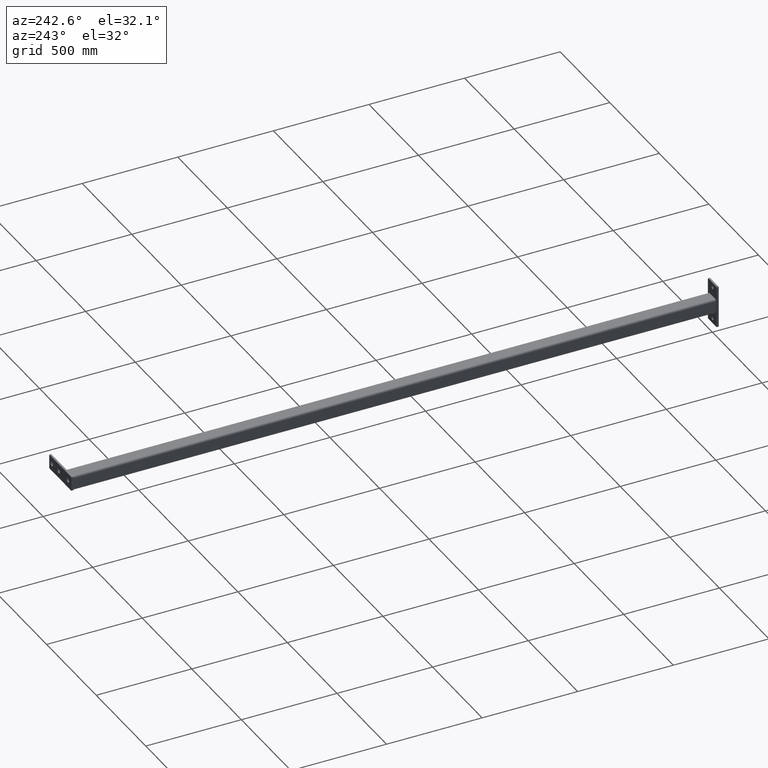
[diagram: clean part render]
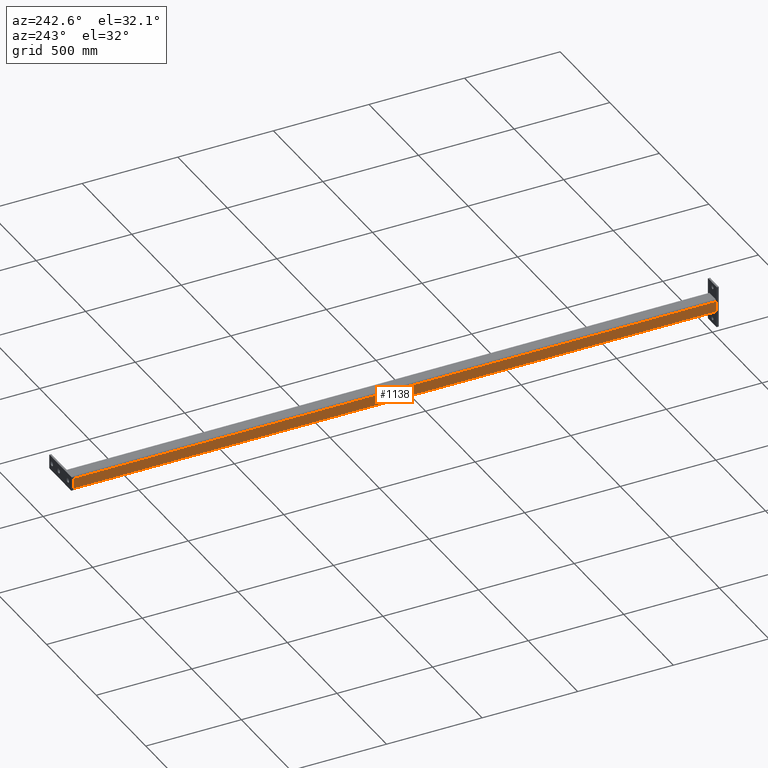
[diagram: same view with one face highlighted and labeled with its STEP entity id]
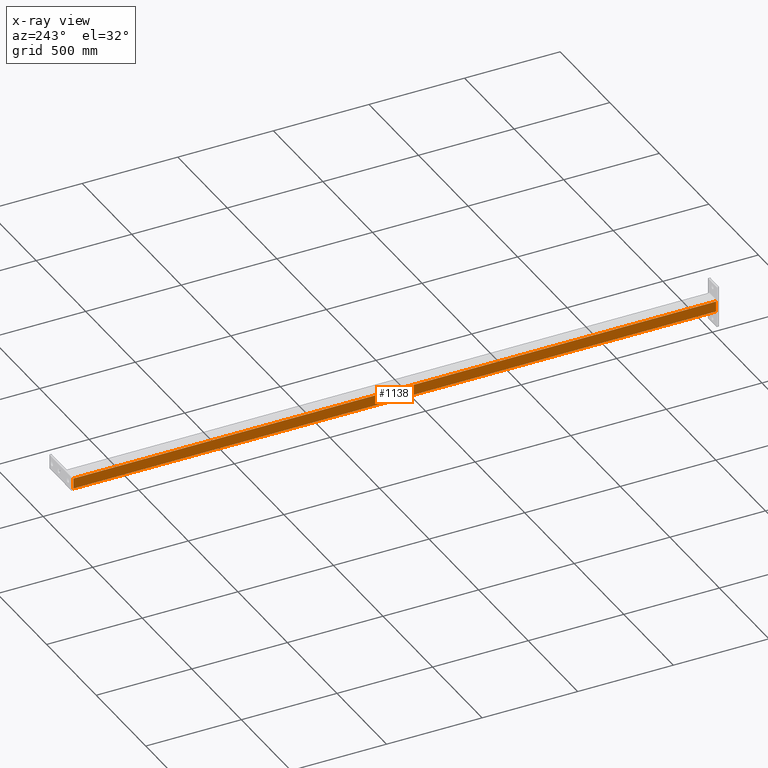
[diagram: x-ray of the same camera — body ghosted, the highlighted face saturated]
A machine part, auxiliary view. The second image highlights one B-rep face of the part: STEP entity #1138.
The next image is the same camera in x-ray: the body ghosted, the highlighted face saturated — about 0% of this face is hidden behind the body in this view.
In plain terms, the highlighted planar face has unit normal (1, -0, -0).
Its self-contained STEP definition (entity closure, byte-faithful):
#2 = VERTEX_POINT ( 'NONE', #1768 ) ;
#38 = VERTEX_POINT ( 'NONE', #2303 ) ;
#113 = CARTESIAN_POINT ( 'NONE',  ( 1680.500000000000000, -37.49999999999938183, -27.50000000000011724 ) ) ;
#124 = DIRECTION ( 'NONE',  ( 0.000000000000000000, 0.000000000000000000, 1.000000000000000000 ) ) ;
#498 = EDGE_CURVE ( 'NONE', #2, #1483, #1218, .T. ) ;
#501 = DIRECTION ( 'NONE',  ( 0.000000000000000000, 0.000000000000000000, 1.000000000000000000 ) ) ;
#568 = ORIENTED_EDGE ( 'NONE', *, *, #1687, .T. ) ;
#634 = VECTOR ( 'NONE', #501, 1000.000000000000000 ) ;
#698 = ORIENTED_EDGE ( 'NONE', *, *, #1643, .F. ) ;
#758 = ORIENTED_EDGE ( 'NONE', *, *, #2141, .T. ) ;
#833 = FACE_OUTER_BOUND ( 'NONE', #981, .T. ) ;
#860 = CARTESIAN_POINT ( 'NONE',  ( -1680.500000000000000, -37.50000000000040501, 27.49999999999987566 ) ) ;
#866 = CARTESIAN_POINT ( 'NONE',  ( -1680.500000000000000, -37.50000000000040501, -27.50000000000011724 ) ) ;
#929 = DIRECTION ( 'NONE',  ( 1.000000000000000000, 3.061616997868382648E-16, -0.000000000000000000 ) ) ;
#981 = EDGE_LOOP ( 'NONE', ( #568, #2300, #698, #758 ) ) ;
#1011 = PLANE ( 'NONE',  #1395 ) ;
#1068 = LINE ( 'NONE', #113, #1622 ) ;
#1093 = VERTEX_POINT ( 'NONE', #2254 ) ;
#1131 = CARTESIAN_POINT ( 'NONE',  ( 1680.500000000000000, -37.49999999999938183, 27.49999999999987566 ) ) ;
#1138 = ADVANCED_FACE ( 'NONE', ( #833 ), #1011, .F. ) ;
#1218 = LINE ( 'NONE', #860, #1732 ) ;
#1368 = VECTOR ( 'NONE', #929, 1000.000000000000000 ) ;
#1395 = AXIS2_PLACEMENT_3D ( 'NONE', #1557, #2267, #2297 ) ;
#1420 = DIRECTION ( 'NONE',  ( 1.000000000000000000, 3.061616997868382648E-16, -0.000000000000000000 ) ) ;
#1483 = VERTEX_POINT ( 'NONE', #1131 ) ;
#1557 = CARTESIAN_POINT ( 'NONE',  ( -1680.500000000000000, -37.50000000000040501, -27.50000000000011724 ) ) ;
#1622 = VECTOR ( 'NONE', #124, 1000.000000000000000 ) ;
#1643 = EDGE_CURVE ( 'NONE', #38, #2, #2121, .T. ) ;
#1687 = EDGE_CURVE ( 'NONE', #1093, #1483, #1068, .T. ) ;
#1732 = VECTOR ( 'NONE', #1420, 1000.000000000000000 ) ;
#1768 = CARTESIAN_POINT ( 'NONE',  ( -1680.500000000000000, -37.50000000000040501, 27.49999999999987566 ) ) ;
#1805 = CARTESIAN_POINT ( 'NONE',  ( -1680.500000000000000, -37.50000000000040501, -27.50000000000011724 ) ) ;
#2121 = LINE ( 'NONE', #866, #634 ) ;
#2141 = EDGE_CURVE ( 'NONE', #38, #1093, #2209, .T. ) ;
#2209 = LINE ( 'NONE', #1805, #1368 ) ;
#2254 = CARTESIAN_POINT ( 'NONE',  ( 1680.500000000000000, -37.49999999999938183, -27.50000000000011724 ) ) ;
#2267 = DIRECTION ( 'NONE',  ( -3.061616997868382648E-16, 1.000000000000000000, 0.000000000000000000 ) ) ;
#2297 = DIRECTION ( 'NONE',  ( -1.000000000000000000, -3.061616997868382648E-16, 0.000000000000000000 ) ) ;
#2300 = ORIENTED_EDGE ( 'NONE', *, *, #498, .F. ) ;
#2303 = CARTESIAN_POINT ( 'NONE',  ( -1680.500000000000000, -37.50000000000040501, -27.50000000000011724 ) ) ;